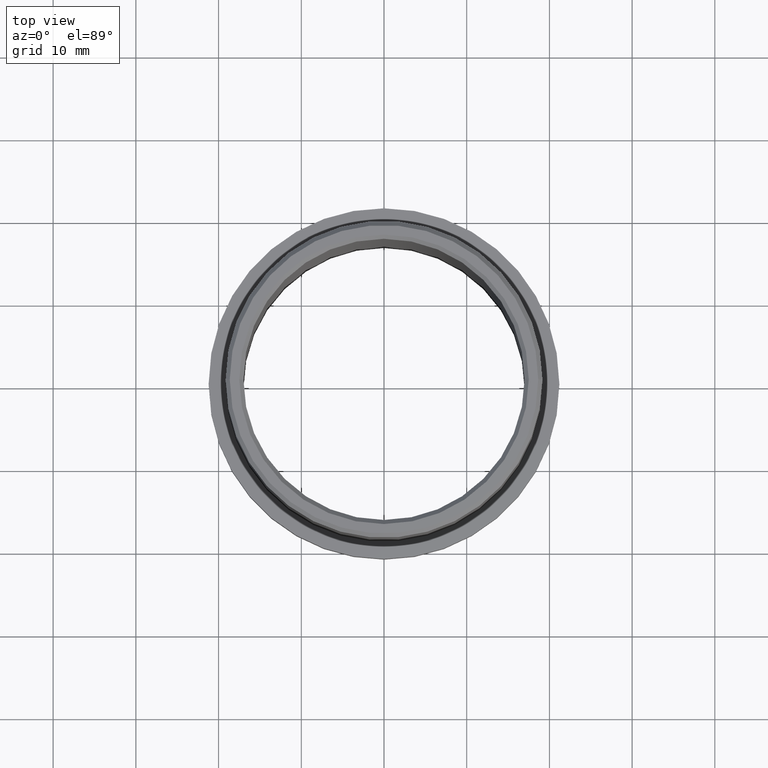
[diagram: clean part render]
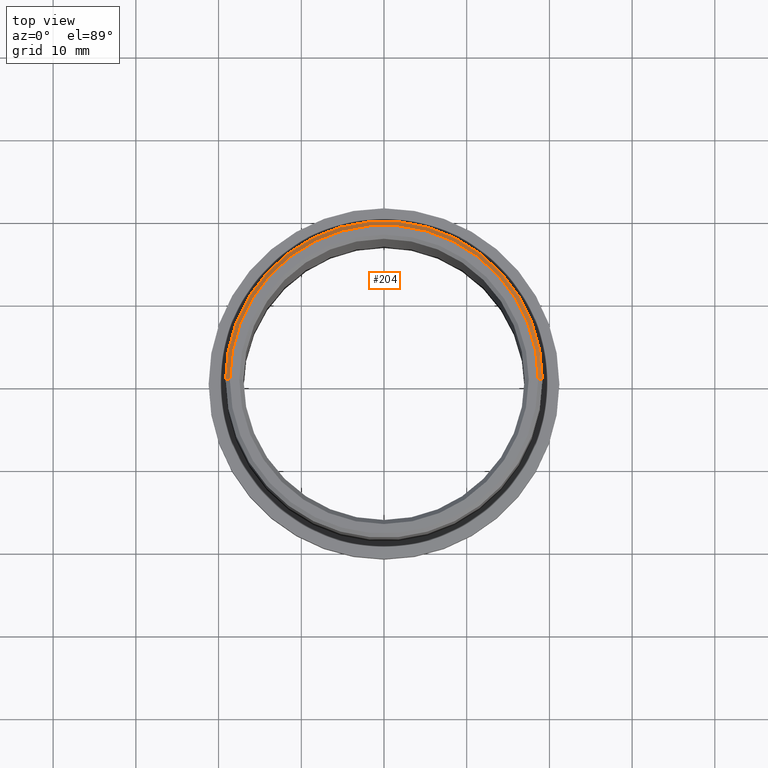
[diagram: same view with one face highlighted and labeled with its STEP entity id]
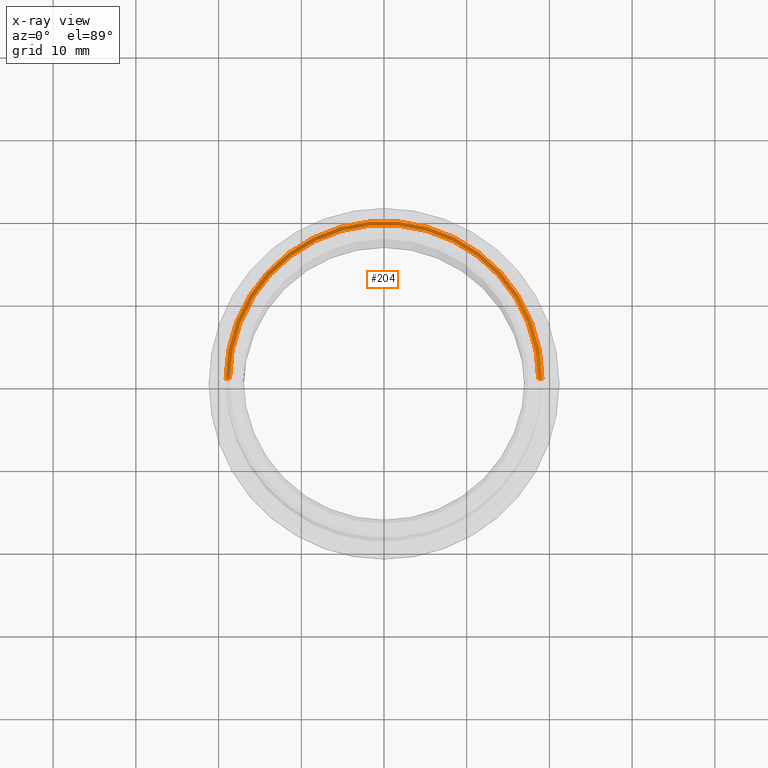
[diagram: x-ray of the same camera — body ghosted, the highlighted face saturated]
A machine part, top view. The second image highlights one B-rep face of the part: STEP entity #204.
The next image is the same camera in x-ray: the body ghosted, the highlighted face saturated — about 0% of this face is hidden behind the body in this view.
In plain terms, the highlighted conical surface has half-angle 45 deg.
Its self-contained STEP definition (entity closure, byte-faithful):
#204 = ADVANCED_FACE ( 'NONE', ( #4373 ), #18774, .T. ) ;
#593 = CIRCLE ( 'NONE', #18391, 18.65000000000002700 ) ;
#1099 = DIRECTION ( 'NONE',  ( -0.7071067811865451300, 0.0000000000000000000, -0.7071067811865500200 ) ) ;
#2030 = EDGE_CURVE ( 'NONE', #5130, #5818, #9085, .T. ) ;
#2085 = ORIENTED_EDGE ( 'NONE', *, *, #13247, .F. ) ;
#2400 = ORIENTED_EDGE ( 'NONE', *, *, #3233, .F. ) ;
#2933 = LINE ( 'NONE', #7269, #4150 ) ;
#3116 = CARTESIAN_POINT ( 'NONE',  ( 18.65000000000002700, 2.283966280409817000E-015, 32.50000000000000000 ) ) ;
#3233 = EDGE_CURVE ( 'NONE', #8309, #12175, #2933, .T. ) ;
#3325 = DIRECTION ( 'NONE',  ( 0.0000000000000000000, 0.0000000000000000000, 1.000000000000000000 ) ) ;
#3924 = EDGE_CURVE ( 'NONE', #12175, #5818, #13215, .T. ) ;
#4150 = VECTOR ( 'NONE', #1099, 1000.000000000000100 ) ;
#4333 = CARTESIAN_POINT ( 'NONE',  ( -18.65000000000002700, 0.0000000000000000000, 32.50000000000000000 ) ) ;
#4373 = FACE_OUTER_BOUND ( 'NONE', #6830, .T. ) ;
#5078 = CARTESIAN_POINT ( 'NONE',  ( -19.15000000000000200, 0.0000000000000000000, 32.00000000000002100 ) ) ;
#5130 = VERTEX_POINT ( 'NONE', #11833 ) ;
#5447 = CARTESIAN_POINT ( 'NONE',  ( 0.0000000000000000000, 0.0000000000000000000, 32.00000000000002100 ) ) ;
#5576 = DIRECTION ( 'NONE',  ( 0.0000000000000000000, 0.0000000000000000000, -1.000000000000000000 ) ) ;
#5818 = VERTEX_POINT ( 'NONE', #8770 ) ;
#6830 = EDGE_LOOP ( 'NONE', ( #2085, #13281, #8617, #2400 ) ) ;
#7269 = CARTESIAN_POINT ( 'NONE',  ( -18.65000000000002700, 0.0000000000000000000, 32.50000000000000000 ) ) ;
#7289 = DIRECTION ( 'NONE',  ( 0.7071067811865451300, 8.659560562354904500E-017, -0.7071067811865500200 ) ) ;
#7915 = CARTESIAN_POINT ( 'NONE',  ( 0.0000000000000000000, 0.0000000000000000000, 32.50000000000000000 ) ) ;
#8052 = DIRECTION ( 'NONE',  ( 0.0000000000000000000, 0.0000000000000000000, -1.000000000000000000 ) ) ;
#8054 = DIRECTION ( 'NONE',  ( 1.000000000000000000, 0.0000000000000000000, 0.0000000000000000000 ) ) ;
#8309 = VERTEX_POINT ( 'NONE', #4333 ) ;
#8617 = ORIENTED_EDGE ( 'NONE', *, *, #3924, .F. ) ;
#8651 = AXIS2_PLACEMENT_3D ( 'NONE', #7915, #8052, #15917 ) ;
#8770 = CARTESIAN_POINT ( 'NONE',  ( 19.15000000000000200, 2.345198620367181800E-015, 32.00000000000002100 ) ) ;
#9085 = LINE ( 'NONE', #3116, #9338 ) ;
#9338 = VECTOR ( 'NONE', #7289, 1000.000000000000100 ) ;
#11638 = AXIS2_PLACEMENT_3D ( 'NONE', #5447, #5576, #16577 ) ;
#11833 = CARTESIAN_POINT ( 'NONE',  ( 18.65000000000002700, 2.314582450388499200E-015, 32.50000000000000000 ) ) ;
#12175 = VERTEX_POINT ( 'NONE', #5078 ) ;
#13215 = CIRCLE ( 'NONE', #11638, 19.15000000000000200 ) ;
#13247 = EDGE_CURVE ( 'NONE', #5130, #8309, #593, .T. ) ;
#13281 = ORIENTED_EDGE ( 'NONE', *, *, #2030, .T. ) ;
#13953 = CARTESIAN_POINT ( 'NONE',  ( 0.0000000000000000000, 0.0000000000000000000, 32.50000000000000000 ) ) ;
#15917 = DIRECTION ( 'NONE',  ( -1.000000000000000000, 0.0000000000000000000, 0.0000000000000000000 ) ) ;
#16577 = DIRECTION ( 'NONE',  ( 1.000000000000000000, 0.0000000000000000000, 0.0000000000000000000 ) ) ;
#18391 = AXIS2_PLACEMENT_3D ( 'NONE', #13953, #3325, #8054 ) ;
#18774 = CONICAL_SURFACE ( 'NONE', #8651, 18.65000000000002700, 0.7853981633974447300 ) ;